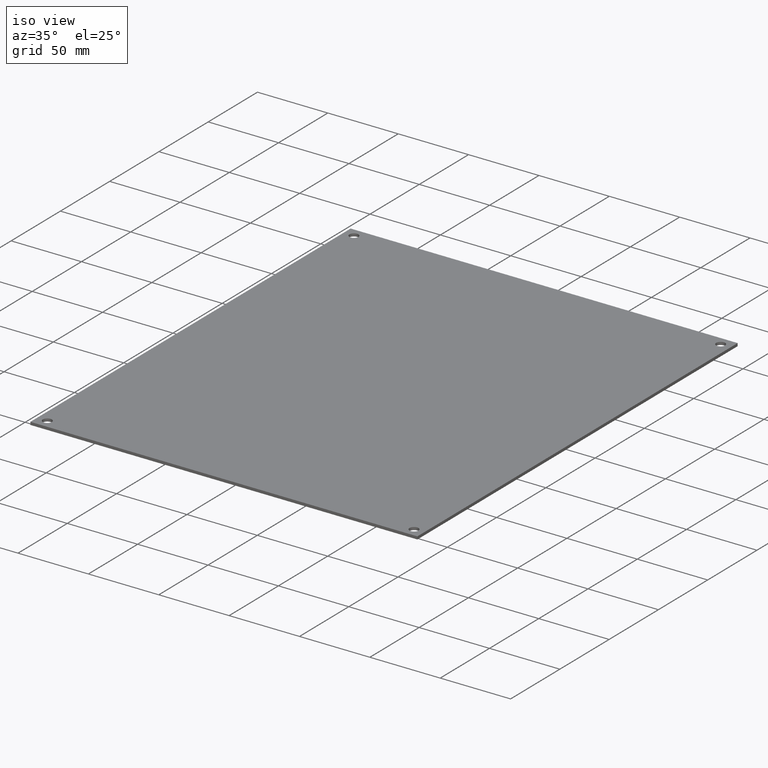
[diagram: clean part render]
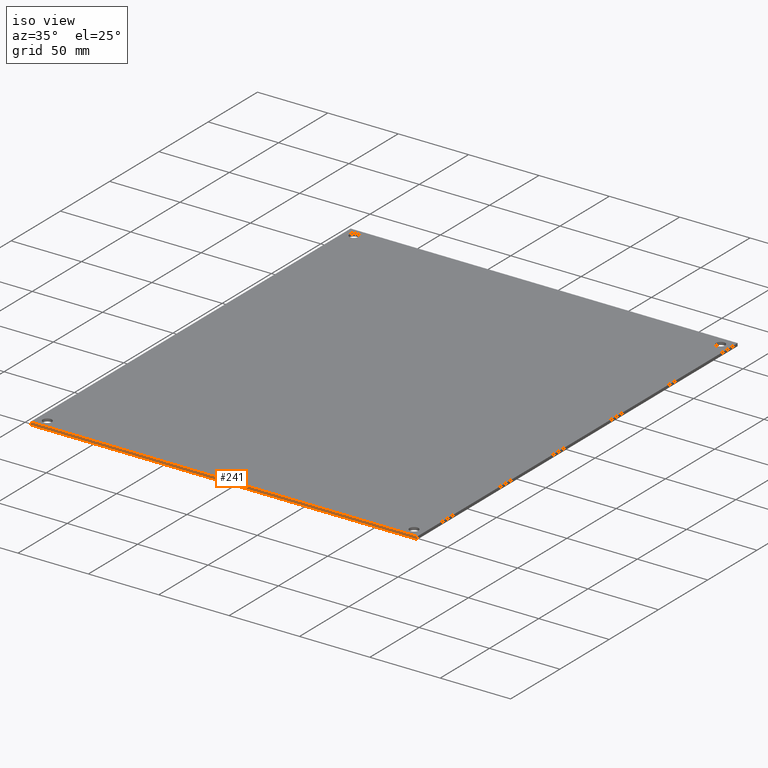
[diagram: same view with one face highlighted and labeled with its STEP entity id]
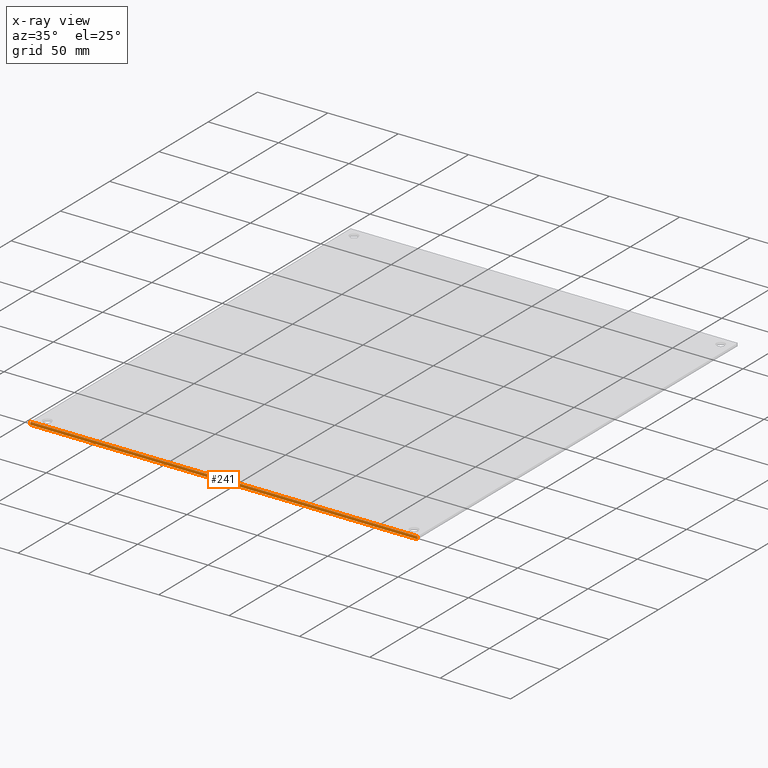
[diagram: x-ray of the same camera — body ghosted, the highlighted face saturated]
A machine part, iso view. The second image highlights one B-rep face of the part: STEP entity #241.
The next image is the same camera in x-ray: the body ghosted, the highlighted face saturated — about 0% of this face is hidden behind the body in this view.
In plain terms, the highlighted planar face has unit normal (0, 1, 0).
Its self-contained STEP definition (entity closure, byte-faithful):
#35 = VERTEX_POINT ( 'NONE', #316 ) ;
#68 = EDGE_CURVE ( 'NONE', #35, #71, #101, .T. ) ;
#71 = VERTEX_POINT ( 'NONE', #360 ) ;
#100 = CARTESIAN_POINT ( 'NONE',  ( -137.5000000000000000, -162.5000000000000000, 2.000000000000000000 ) ) ;
#101 = LINE ( 'NONE', #100, #400 ) ;
#239 = VERTEX_POINT ( 'NONE', #386 ) ;
#241 = ADVANCED_FACE ( 'NONE', ( #358 ), #357, .F. ) ;
#242 = EDGE_LOOP ( 'NONE', ( #243, #244, #246, #257 ) ) ;
#243 = ORIENTED_EDGE ( 'NONE', *, *, #294, .T. ) ;
#244 = ORIENTED_EDGE ( 'NONE', *, *, #245, .F. ) ;
#245 = EDGE_CURVE ( 'NONE', #71, #239, #352, .T. ) ;
#246 = ORIENTED_EDGE ( 'NONE', *, *, #68, .F. ) ;
#248 = VERTEX_POINT ( 'NONE', #347 ) ;
#254 = EDGE_CURVE ( 'NONE', #35, #248, #341, .T. ) ;
#257 = ORIENTED_EDGE ( 'NONE', *, *, #254, .T. ) ;
#294 = EDGE_CURVE ( 'NONE', #248, #239, #460, .T. ) ;
#316 = CARTESIAN_POINT ( 'NONE',  ( -137.5000000000000000, -162.5000000000000000, 2.000000000000000000 ) ) ;
#338 = DIRECTION ( 'NONE',  ( -0.0000000000000000000, -0.0000000000000000000, -1.000000000000000000 ) ) ;
#339 = VECTOR ( 'NONE', #338, 1000.000000000000000 ) ;
#340 = CARTESIAN_POINT ( 'NONE',  ( -137.5000000000000000, -162.5000000000000000, 2.000000000000000000 ) ) ;
#341 = LINE ( 'NONE', #340, #339 ) ;
#347 = CARTESIAN_POINT ( 'NONE',  ( -137.5000000000000000, -162.5000000000000000, 0.0000000000000000000 ) ) ;
#349 = DIRECTION ( 'NONE',  ( -0.0000000000000000000, -0.0000000000000000000, -1.000000000000000000 ) ) ;
#350 = VECTOR ( 'NONE', #349, 1000.000000000000000 ) ;
#351 = CARTESIAN_POINT ( 'NONE',  ( 137.5000000000000000, -162.5000000000000000, 2.000000000000000000 ) ) ;
#352 = LINE ( 'NONE', #351, #350 ) ;
#353 = DIRECTION ( 'NONE',  ( 0.0000000000000000000, -0.0000000000000000000, 1.000000000000000000 ) ) ;
#354 = DIRECTION ( 'NONE',  ( 0.0000000000000000000, 1.000000000000000000, 0.0000000000000000000 ) ) ;
#355 = CARTESIAN_POINT ( 'NONE',  ( -137.5000000000000000, -162.5000000000000000, 2.000000000000000000 ) ) ;
#356 = AXIS2_PLACEMENT_3D ( 'NONE', #355, #354, #353 ) ;
#357 = PLANE ( 'NONE',  #356 ) ;
#358 = FACE_OUTER_BOUND ( 'NONE', #242, .T. ) ;
#360 = CARTESIAN_POINT ( 'NONE',  ( 137.5000000000000000, -162.5000000000000000, 2.000000000000000000 ) ) ;
#366 = DIRECTION ( 'NONE',  ( 1.000000000000000000, 0.0000000000000000000, 0.0000000000000000000 ) ) ;
#367 = VECTOR ( 'NONE', #366, 1000.000000000000000 ) ;
#381 = DIRECTION ( 'NONE',  ( 1.000000000000000000, 0.0000000000000000000, 0.0000000000000000000 ) ) ;
#386 = CARTESIAN_POINT ( 'NONE',  ( 137.5000000000000000, -162.5000000000000000, 0.0000000000000000000 ) ) ;
#400 = VECTOR ( 'NONE', #381, 1000.000000000000000 ) ;
#460 = LINE ( 'NONE', #461, #367 ) ;
#461 = CARTESIAN_POINT ( 'NONE',  ( -137.5000000000000000, -162.5000000000000000, 0.0000000000000000000 ) ) ;